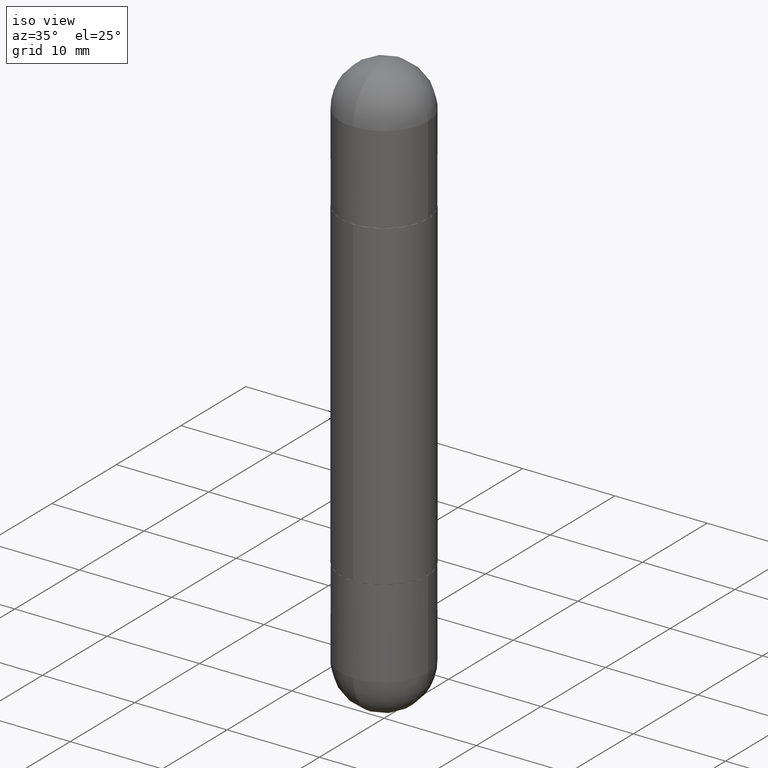
[diagram: clean part render]
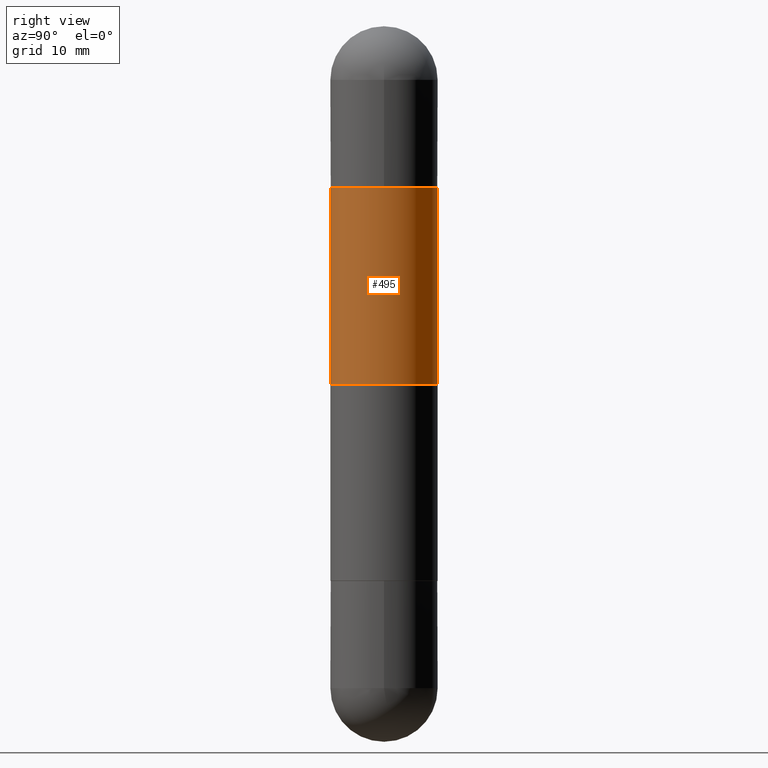
[diagram: tour spotlight — one face highlighted and labeled with its STEP entity id]
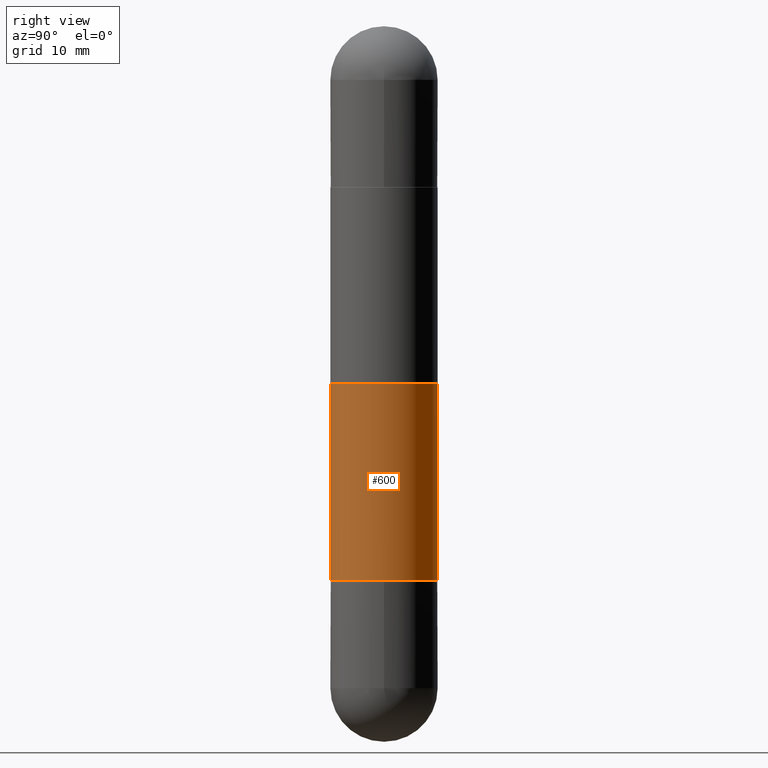
[diagram: tour spotlight — one face highlighted and labeled with its STEP entity id]
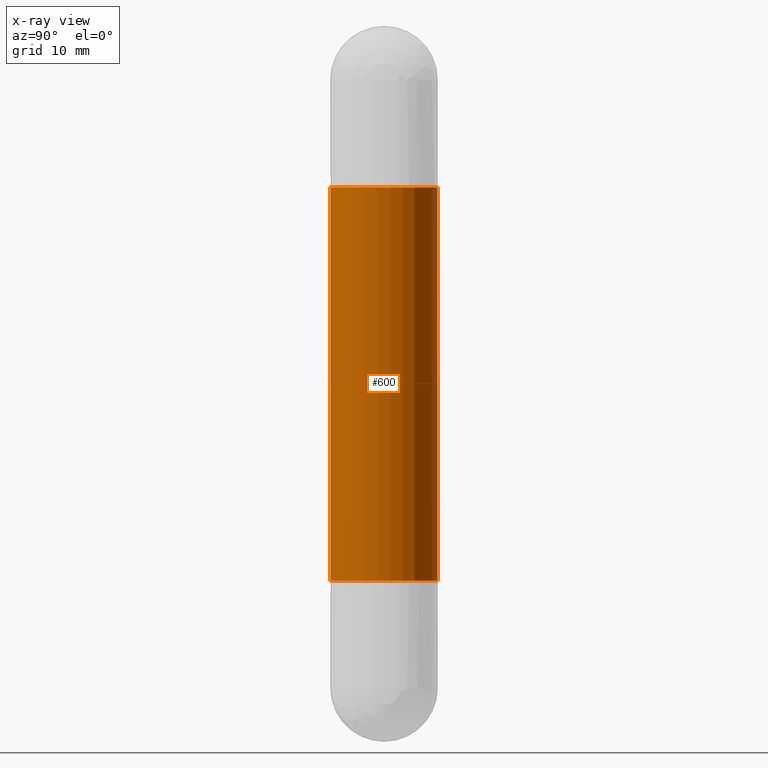
[diagram: x-ray of the same camera — body ghosted, this tour face saturated]
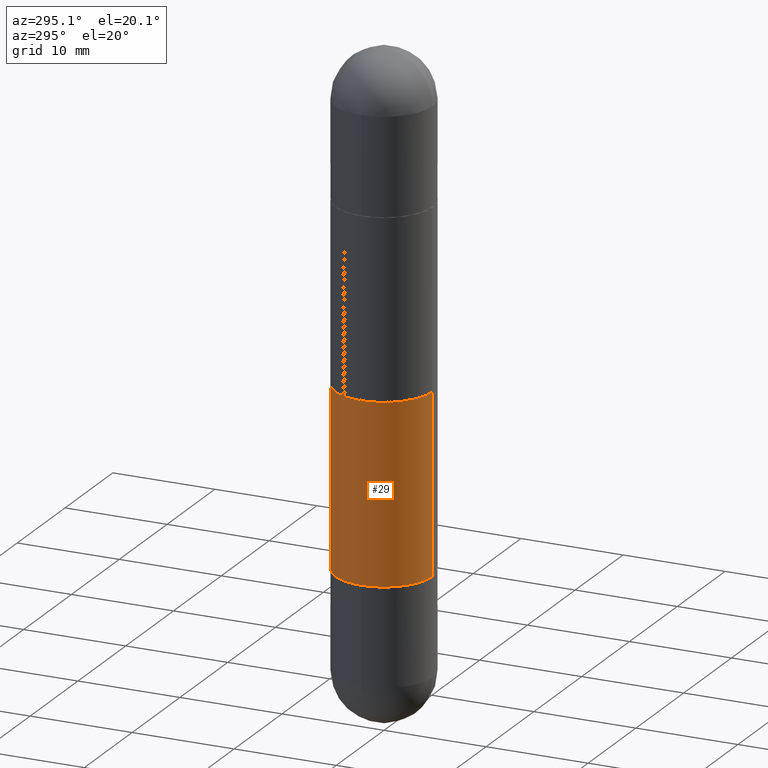
[diagram: tour spotlight — one face highlighted and labeled with its STEP entity id]
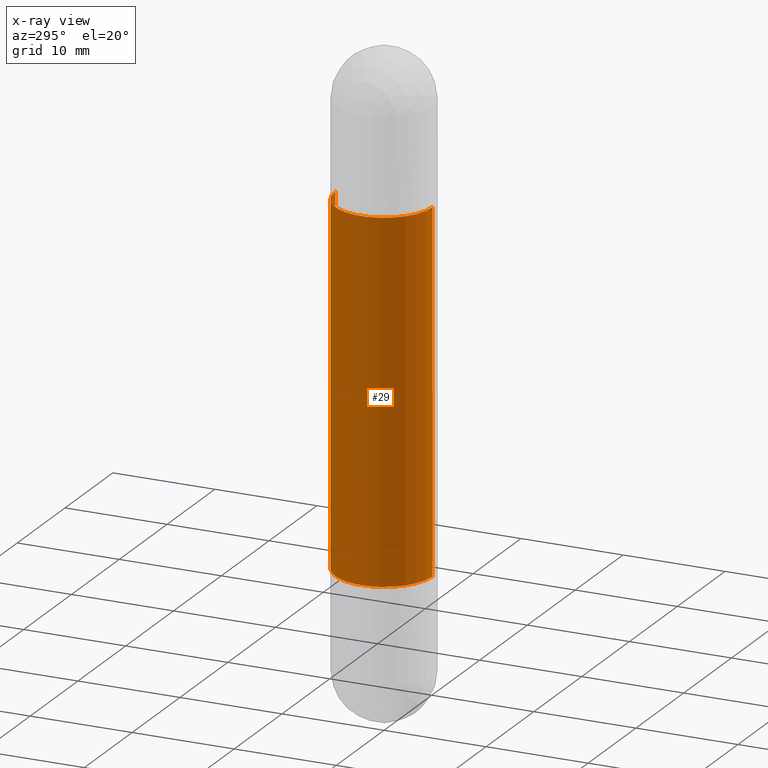
[diagram: x-ray of the same camera — body ghosted, this tour face saturated]
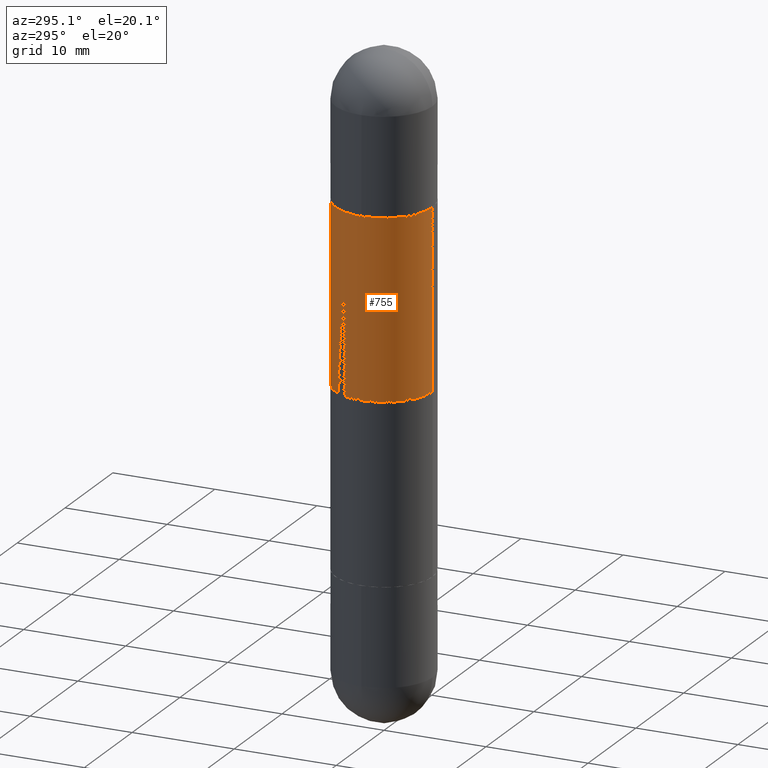
[diagram: tour spotlight — one face highlighted and labeled with its STEP entity id]
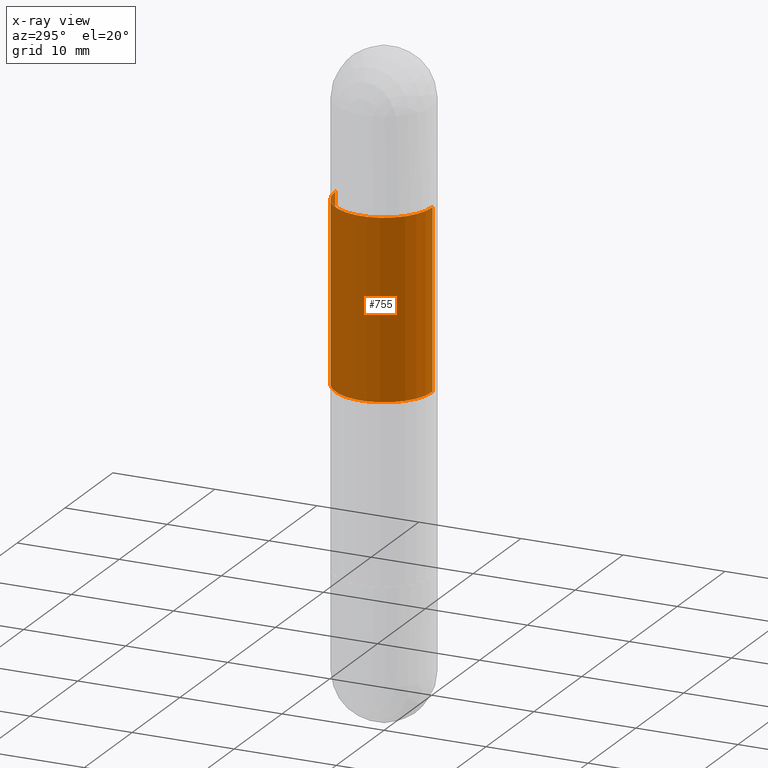
[diagram: x-ray of the same camera — body ghosted, this tour face saturated]
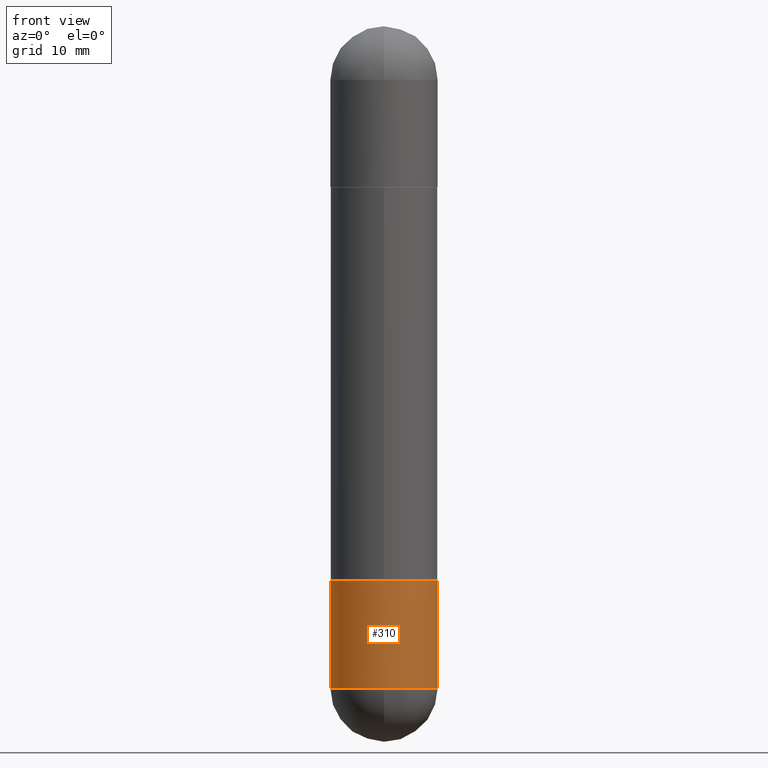
[diagram: tour spotlight — one face highlighted and labeled with its STEP entity id]
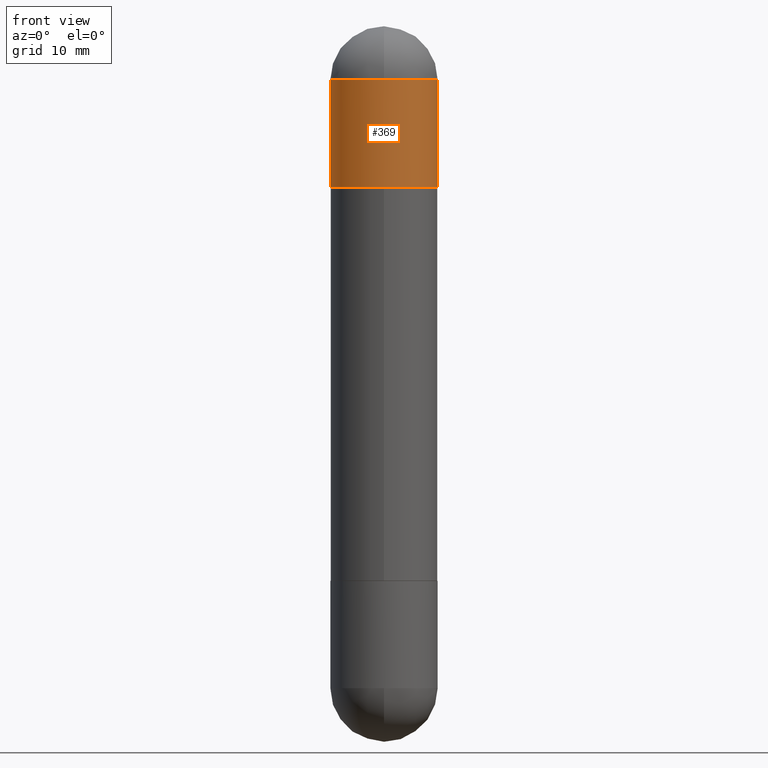
[diagram: tour spotlight — one face highlighted and labeled with its STEP entity id]
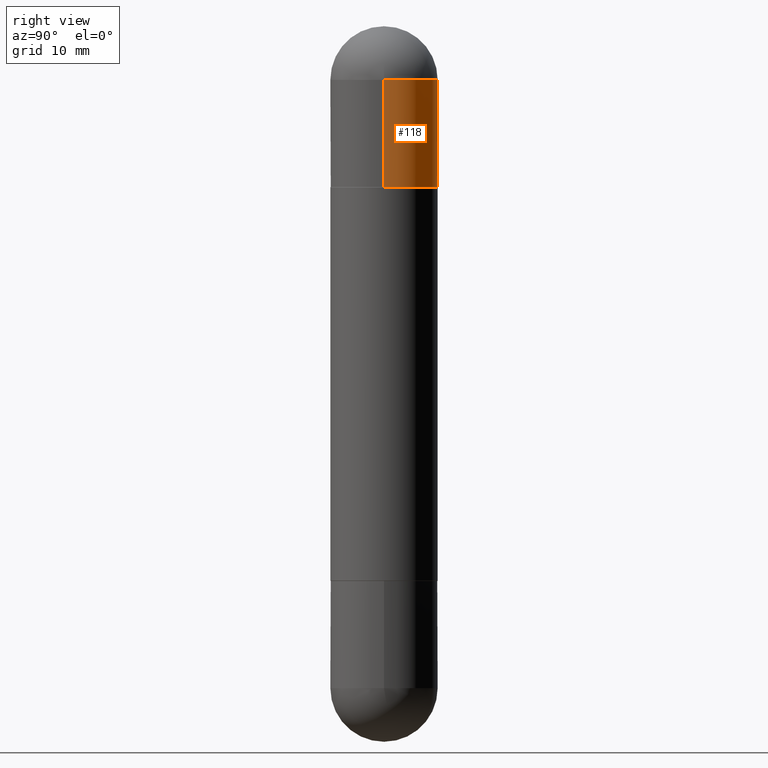
[diagram: tour spotlight — one face highlighted and labeled with its STEP entity id]
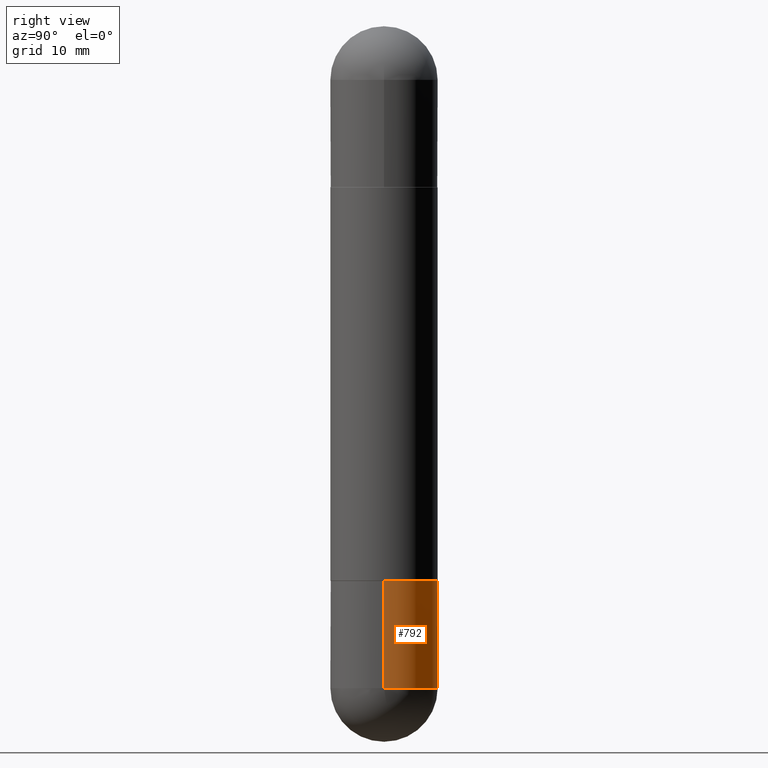
[diagram: tour spotlight — one face highlighted and labeled with its STEP entity id]
A machine part: a face-by-face anatomy tour. The part has 29 B-rep faces; the first image is the clean iso view, then the 8 largest visible faces are spotlighted one at a time (largest first), each with its STEP entity span.

Face 1 — right view, entity #495. In plain terms, the highlighted cylindrical surface (partial cylindrical patch) has radius 4.7625 mm, axis along (-0, 0, -1).
Definition (entity closure, byte-faithful):
#81 = ORIENTED_EDGE ( 'NONE', *, *, #719, .F. ) ;
#113 = CARTESIAN_POINT ( 'NONE',  ( 3.057398756860784006E-29, -4.363545784770995696E-15, -1.250000000000000222 ) ) ;
#135 = DIRECTION ( 'NONE',  ( -6.982962677686265922E-15, -1.000000000000000000, -3.642463991552347014E-15 ) ) ;
#182 = CARTESIAN_POINT ( 'NONE',  ( 0.000000000000000000, 0.000000000000000000, -2.500000000000000444 ) ) ;
#185 = DIRECTION ( 'NONE',  ( -2.445919005488626364E-29, 3.490836627816795453E-15, -1.000000000000000000 ) ) ;
#210 = CARTESIAN_POINT ( 'NONE',  ( 1.286343374582162760E-15, 0.1875000000000001110, -2.500000000000000000 ) ) ;
#215 = VERTEX_POINT ( 'NONE', #644 ) ;
#250 = EDGE_CURVE ( 'NONE', #215, #428, #277, .T. ) ;
#277 = LINE ( 'NONE', #210, #727 ) ;
#279 = VECTOR ( 'NONE', #185, 39.37007874015748143 ) ;
#318 = AXIS2_PLACEMENT_3D ( 'NONE', #113, #361, #380 ) ;
#321 = CARTESIAN_POINT ( 'NONE',  ( -1.309305502066128860E-15, -0.1875000000000069389, -0.5630000000000014992 ) ) ;
#351 = FACE_OUTER_BOUND ( 'NONE', #561, .T. ) ;
#353 = CARTESIAN_POINT ( 'NONE',  ( 1.286343374582209894E-15, 0.1874999999999957534, -1.250000000000000222 ) ) ;
#361 = DIRECTION ( 'NONE',  ( -0.000000000000000000, -0.000000000000000000, -1.000000000000000000 ) ) ;
#370 = AXIS2_PLACEMENT_3D ( 'NONE', #182, #500, #756 ) ;
#380 = DIRECTION ( 'NONE',  ( -1.000000000000000000, 0.000000000000000000, 0.000000000000000000 ) ) ;
#404 = ORIENTED_EDGE ( 'NONE', *, *, #250, .F. ) ;
#426 = AXIS2_PLACEMENT_3D ( 'NONE', #750, #430, #135 ) ;
#428 = VERTEX_POINT ( 'NONE', #353 ) ;
#430 = DIRECTION ( 'NONE',  ( 2.445919005488626364E-29, -3.490836627816795453E-15, 1.000000000000000000 ) ) ;
#453 = CIRCLE ( 'NONE', #426, 0.1875000000000002220 ) ;
#460 = VERTEX_POINT ( 'NONE', #747 ) ;
#479 = ORIENTED_EDGE ( 'NONE', *, *, #519, .T. ) ;
#495 = ADVANCED_FACE ( 'NONE', ( #351 ), #563, .T. ) ;
#500 = DIRECTION ( 'NONE',  ( -2.445919005488626364E-29, 3.490836627816795453E-15, -1.000000000000000000 ) ) ;
#519 = EDGE_CURVE ( 'NONE', #704, #460, #816, .T. ) ;
#561 = EDGE_LOOP ( 'NONE', ( #404, #725, #479, #81 ) ) ;
#563 = CYLINDRICAL_SURFACE ( 'NONE', #370, 0.1875000000000001110 ) ;
#583 = DIRECTION ( 'NONE',  ( -2.445919005488626364E-29, 3.490836627816795453E-15, -1.000000000000000000 ) ) ;
#610 = CIRCLE ( 'NONE', #318, 0.1875000000000001110 ) ;
#619 = CARTESIAN_POINT ( 'NONE',  ( -1.309305502066175797E-15, -0.1875000000000001110, -2.500000000000001332 ) ) ;
#644 = CARTESIAN_POINT ( 'NONE',  ( 1.286343374582210880E-15, 0.1874999999999935052, -0.5630000000000001670 ) ) ;
#704 = VERTEX_POINT ( 'NONE', #321 ) ;
#719 = EDGE_CURVE ( 'NONE', #428, #460, #610, .T. ) ;
#725 = ORIENTED_EDGE ( 'NONE', *, *, #760, .F. ) ;
#727 = VECTOR ( 'NONE', #583, 39.37007874015748143 ) ;
#747 = CARTESIAN_POINT ( 'NONE',  ( -1.309305502066136946E-15, -0.1875000000000044964, -1.250000000000000222 ) ) ;
#750 = CARTESIAN_POINT ( 'NONE',  ( 4.737745113631468267E-29, -6.761750548081131125E-15, -0.5630000000000008331 ) ) ;
#756 = DIRECTION ( 'NONE',  ( -6.982962677686266711E-15, -1.000000000000000000, -2.913971193241879189E-15 ) ) ;
#760 = EDGE_CURVE ( 'NONE', #704, #215, #453, .T. ) ;
#816 = LINE ( 'NONE', #619, #279 ) ;

Face 2 — right view, entity #600. An x-ray twin of the same camera follows (body ghosted, this face saturated) — the face is partly hidden behind the body. In plain terms, the highlighted cylindrical surface (partial cylindrical patch) has radius 4.7625 mm, axis along (-0, 0, -1).
Definition (entity closure, byte-faithful):
#10 = CARTESIAN_POINT ( 'NONE',  ( 0.000000000000000000, 0.000000000000000000, -2.500000000000000444 ) ) ;
#24 = DIRECTION ( 'NONE',  ( -2.445919005488626364E-29, 3.490836627816795453E-15, 1.000000000000000000 ) ) ;
#49 = CARTESIAN_POINT ( 'NONE',  ( -1.309305502066128860E-15, -0.1875000000000069389, -0.5630000000000014992 ) ) ;
#52 = VERTEX_POINT ( 'NONE', #633 ) ;
#57 = VECTOR ( 'NONE', #769, 39.37007874015748143 ) ;
#58 = DIRECTION ( 'NONE',  ( -2.445919005488626364E-29, 3.490836627816795453E-15, -1.000000000000000000 ) ) ;
#89 = CIRCLE ( 'NONE', #754, 0.1875000000000002220 ) ;
#110 = AXIS2_PLACEMENT_3D ( 'NONE', #10, #58, #765 ) ;
#163 = ORIENTED_EDGE ( 'NONE', *, *, #582, .F. ) ;
#166 = DIRECTION ( 'NONE',  ( 2.445919005488626364E-29, -3.490836627816795453E-15, 1.000000000000000000 ) ) ;
#167 = ORIENTED_EDGE ( 'NONE', *, *, #366, .F. ) ;
#199 = CARTESIAN_POINT ( 'NONE',  ( 1.286343374582193722E-15, 0.1874999999999934497, -1.937000000000000499 ) ) ;
#218 = DIRECTION ( 'NONE',  ( -6.982962677686265922E-15, -1.000000000000000000, 2.913971193241877216E-15 ) ) ;
#263 = CARTESIAN_POINT ( 'NONE',  ( 1.286343374582210880E-15, 0.1874999999999935052, -0.5630000000000001670 ) ) ;
#357 = AXIS2_PLACEMENT_3D ( 'NONE', #656, #24, #218 ) ;
#366 = EDGE_CURVE ( 'NONE', #745, #784, #89, .T. ) ;
#378 = CYLINDRICAL_SURFACE ( 'NONE', #110, 0.1875000000000001110 ) ;
#506 = FACE_OUTER_BOUND ( 'NONE', #661, .T. ) ;
#507 = VECTOR ( 'NONE', #580, 39.37007874015748143 ) ;
#514 = LINE ( 'NONE', #707, #507 ) ;
#532 = ORIENTED_EDGE ( 'NONE', *, *, #815, .T. ) ;
#550 = CIRCLE ( 'NONE', #357, 0.1875000000000002220 ) ;
#580 = DIRECTION ( 'NONE',  ( -2.445919005488626364E-29, 3.490836627816795453E-15, -1.000000000000000000 ) ) ;
#582 = EDGE_CURVE ( 'NONE', #784, #667, #687, .T. ) ;
#600 = ADVANCED_FACE ( 'NONE', ( #506 ), #378, .T. ) ;
#629 = CARTESIAN_POINT ( 'NONE',  ( 1.286343374582162760E-15, 0.1875000000000001110, -2.500000000000000000 ) ) ;
#633 = CARTESIAN_POINT ( 'NONE',  ( -1.309305502066129254E-15, -0.1875000000000069944, -1.936999999999999389 ) ) ;
#656 = CARTESIAN_POINT ( 'NONE',  ( 4.737745113631468267E-29, -6.761750548081131125E-15, -1.936999999999999833 ) ) ;
#661 = EDGE_LOOP ( 'NONE', ( #163, #167, #785, #532 ) ) ;
#667 = VERTEX_POINT ( 'NONE', #199 ) ;
#674 = DIRECTION ( 'NONE',  ( -6.982962677686265922E-15, -1.000000000000000000, -3.642463991552347014E-15 ) ) ;
#687 = LINE ( 'NONE', #629, #57 ) ;
#707 = CARTESIAN_POINT ( 'NONE',  ( -1.309305502066175797E-15, -0.1875000000000001110, -2.500000000000001332 ) ) ;
#745 = VERTEX_POINT ( 'NONE', #49 ) ;
#754 = AXIS2_PLACEMENT_3D ( 'NONE', #801, #166, #674 ) ;
#765 = DIRECTION ( 'NONE',  ( -6.982962677686266711E-15, -1.000000000000000000, -2.913971193241879189E-15 ) ) ;
#769 = DIRECTION ( 'NONE',  ( -2.445919005488626364E-29, 3.490836627816795453E-15, -1.000000000000000000 ) ) ;
#783 = EDGE_CURVE ( 'NONE', #745, #52, #514, .T. ) ;
#784 = VERTEX_POINT ( 'NONE', #263 ) ;
#785 = ORIENTED_EDGE ( 'NONE', *, *, #783, .T. ) ;
#801 = CARTESIAN_POINT ( 'NONE',  ( 4.737745113631468267E-29, -6.761750548081131125E-15, -0.5630000000000008331 ) ) ;
#815 = EDGE_CURVE ( 'NONE', #52, #667, #550, .T. ) ;

Face 3 — auxiliary view, entity #29. An x-ray twin of the same camera follows (body ghosted, this face saturated) — the face is partly hidden behind the body. In plain terms, the highlighted cylindrical surface (partial cylindrical patch) has radius 4.7625 mm, axis along (-0, 0, -1).
Definition (entity closure, byte-faithful):
#8 = CARTESIAN_POINT ( 'NONE',  ( 4.737745113631468267E-29, -6.761750548081131125E-15, -0.5630000000000008331 ) ) ;
#29 = ADVANCED_FACE ( 'NONE', ( #123 ), #621, .T. ) ;
#49 = CARTESIAN_POINT ( 'NONE',  ( -1.309305502066128860E-15, -0.1875000000000069389, -0.5630000000000014992 ) ) ;
#52 = VERTEX_POINT ( 'NONE', #633 ) ;
#57 = VECTOR ( 'NONE', #769, 39.37007874015748143 ) ;
#62 = DIRECTION ( 'NONE',  ( -6.982962677686266711E-15, -1.000000000000000000, -2.913971193241879189E-15 ) ) ;
#108 = ORIENTED_EDGE ( 'NONE', *, *, #143, .F. ) ;
#123 = FACE_OUTER_BOUND ( 'NONE', #483, .T. ) ;
#126 = DIRECTION ( 'NONE',  ( -2.445919005488626364E-29, 3.490836627816795453E-15, -1.000000000000000000 ) ) ;
#130 = CIRCLE ( 'NONE', #554, 0.1875000000000002220 ) ;
#143 = EDGE_CURVE ( 'NONE', #784, #745, #130, .T. ) ;
#194 = CARTESIAN_POINT ( 'NONE',  ( 0.000000000000000000, 0.000000000000000000, -2.500000000000000444 ) ) ;
#199 = CARTESIAN_POINT ( 'NONE',  ( 1.286343374582193722E-15, 0.1874999999999934497, -1.937000000000000499 ) ) ;
#263 = CARTESIAN_POINT ( 'NONE',  ( 1.286343374582210880E-15, 0.1874999999999935052, -0.5630000000000001670 ) ) ;
#301 = DIRECTION ( 'NONE',  ( -6.982962677686265922E-15, -1.000000000000000000, 2.913971193241877216E-15 ) ) ;
#350 = AXIS2_PLACEMENT_3D ( 'NONE', #194, #126, #62 ) ;
#397 = CIRCLE ( 'NONE', #597, 0.1875000000000002220 ) ;
#483 = EDGE_LOOP ( 'NONE', ( #108, #752, #664, #617 ) ) ;
#507 = VECTOR ( 'NONE', #580, 39.37007874015748143 ) ;
#514 = LINE ( 'NONE', #707, #507 ) ;
#554 = AXIS2_PLACEMENT_3D ( 'NONE', #8, #706, #579 ) ;
#579 = DIRECTION ( 'NONE',  ( -6.982962677686265922E-15, -1.000000000000000000, -3.642463991552347014E-15 ) ) ;
#580 = DIRECTION ( 'NONE',  ( -2.445919005488626364E-29, 3.490836627816795453E-15, -1.000000000000000000 ) ) ;
#582 = EDGE_CURVE ( 'NONE', #784, #667, #687, .T. ) ;
#597 = AXIS2_PLACEMENT_3D ( 'NONE', #766, #641, #301 ) ;
#617 = ORIENTED_EDGE ( 'NONE', *, *, #783, .F. ) ;
#621 = CYLINDRICAL_SURFACE ( 'NONE', #350, 0.1875000000000001110 ) ;
#629 = CARTESIAN_POINT ( 'NONE',  ( 1.286343374582162760E-15, 0.1875000000000001110, -2.500000000000000000 ) ) ;
#633 = CARTESIAN_POINT ( 'NONE',  ( -1.309305502066129254E-15, -0.1875000000000069944, -1.936999999999999389 ) ) ;
#641 = DIRECTION ( 'NONE',  ( -2.445919005488626364E-29, 3.490836627816795453E-15, 1.000000000000000000 ) ) ;
#657 = EDGE_CURVE ( 'NONE', #667, #52, #397, .T. ) ;
#664 = ORIENTED_EDGE ( 'NONE', *, *, #657, .T. ) ;
#667 = VERTEX_POINT ( 'NONE', #199 ) ;
#687 = LINE ( 'NONE', #629, #57 ) ;
#706 = DIRECTION ( 'NONE',  ( 2.445919005488626364E-29, -3.490836627816795453E-15, 1.000000000000000000 ) ) ;
#707 = CARTESIAN_POINT ( 'NONE',  ( -1.309305502066175797E-15, -0.1875000000000001110, -2.500000000000001332 ) ) ;
#745 = VERTEX_POINT ( 'NONE', #49 ) ;
#752 = ORIENTED_EDGE ( 'NONE', *, *, #582, .T. ) ;
#766 = CARTESIAN_POINT ( 'NONE',  ( 4.737745113631468267E-29, -6.761750548081131125E-15, -1.936999999999999833 ) ) ;
#769 = DIRECTION ( 'NONE',  ( -2.445919005488626364E-29, 3.490836627816795453E-15, -1.000000000000000000 ) ) ;
#783 = EDGE_CURVE ( 'NONE', #745, #52, #514, .T. ) ;
#784 = VERTEX_POINT ( 'NONE', #263 ) ;

Face 4 — auxiliary view, entity #755. An x-ray twin of the same camera follows (body ghosted, this face saturated) — the face is partly hidden behind the body. In plain terms, the highlighted cylindrical surface (partial cylindrical patch) has radius 4.7625 mm, axis along (-0, 0, -1).
Definition (entity closure, byte-faithful):
#14 = DIRECTION ( 'NONE',  ( -1.000000000000000000, 0.000000000000000000, 0.000000000000000000 ) ) ;
#63 = FACE_OUTER_BOUND ( 'NONE', #238, .T. ) ;
#70 = CARTESIAN_POINT ( 'NONE',  ( 0.000000000000000000, 0.000000000000000000, -2.500000000000000444 ) ) ;
#184 = ORIENTED_EDGE ( 'NONE', *, *, #251, .F. ) ;
#185 = DIRECTION ( 'NONE',  ( -2.445919005488626364E-29, 3.490836627816795453E-15, -1.000000000000000000 ) ) ;
#210 = CARTESIAN_POINT ( 'NONE',  ( 1.286343374582162760E-15, 0.1875000000000001110, -2.500000000000000000 ) ) ;
#215 = VERTEX_POINT ( 'NONE', #644 ) ;
#238 = EDGE_LOOP ( 'NONE', ( #412, #242, #184, #300 ) ) ;
#242 = ORIENTED_EDGE ( 'NONE', *, *, #250, .T. ) ;
#250 = EDGE_CURVE ( 'NONE', #215, #428, #277, .T. ) ;
#251 = EDGE_CURVE ( 'NONE', #460, #428, #337, .T. ) ;
#252 = DIRECTION ( 'NONE',  ( 2.445919005488626364E-29, -3.490836627816795453E-15, 1.000000000000000000 ) ) ;
#277 = LINE ( 'NONE', #210, #727 ) ;
#279 = VECTOR ( 'NONE', #185, 39.37007874015748143 ) ;
#300 = ORIENTED_EDGE ( 'NONE', *, *, #519, .F. ) ;
#321 = CARTESIAN_POINT ( 'NONE',  ( -1.309305502066128860E-15, -0.1875000000000069389, -0.5630000000000014992 ) ) ;
#337 = CIRCLE ( 'NONE', #767, 0.1875000000000001110 ) ;
#353 = CARTESIAN_POINT ( 'NONE',  ( 1.286343374582209894E-15, 0.1874999999999957534, -1.250000000000000222 ) ) ;
#356 = CIRCLE ( 'NONE', #480, 0.1875000000000002220 ) ;
#412 = ORIENTED_EDGE ( 'NONE', *, *, #546, .F. ) ;
#428 = VERTEX_POINT ( 'NONE', #353 ) ;
#436 = CARTESIAN_POINT ( 'NONE',  ( 4.737745113631468267E-29, -6.761750548081131125E-15, -0.5630000000000008331 ) ) ;
#460 = VERTEX_POINT ( 'NONE', #747 ) ;
#462 = CARTESIAN_POINT ( 'NONE',  ( 3.057398756860784006E-29, -4.363545784770995696E-15, -1.250000000000000222 ) ) ;
#480 = AXIS2_PLACEMENT_3D ( 'NONE', #436, #252, #696 ) ;
#519 = EDGE_CURVE ( 'NONE', #704, #460, #816, .T. ) ;
#520 = AXIS2_PLACEMENT_3D ( 'NONE', #70, #810, #634 ) ;
#546 = EDGE_CURVE ( 'NONE', #215, #704, #356, .T. ) ;
#583 = DIRECTION ( 'NONE',  ( -2.445919005488626364E-29, 3.490836627816795453E-15, -1.000000000000000000 ) ) ;
#619 = CARTESIAN_POINT ( 'NONE',  ( -1.309305502066175797E-15, -0.1875000000000001110, -2.500000000000001332 ) ) ;
#634 = DIRECTION ( 'NONE',  ( -6.982962677686266711E-15, -1.000000000000000000, -2.913971193241879189E-15 ) ) ;
#644 = CARTESIAN_POINT ( 'NONE',  ( 1.286343374582210880E-15, 0.1874999999999935052, -0.5630000000000001670 ) ) ;
#696 = DIRECTION ( 'NONE',  ( -6.982962677686265922E-15, -1.000000000000000000, -3.642463991552347014E-15 ) ) ;
#702 = CYLINDRICAL_SURFACE ( 'NONE', #520, 0.1875000000000001110 ) ;
#704 = VERTEX_POINT ( 'NONE', #321 ) ;
#726 = DIRECTION ( 'NONE',  ( -0.000000000000000000, -0.000000000000000000, -1.000000000000000000 ) ) ;
#727 = VECTOR ( 'NONE', #583, 39.37007874015748143 ) ;
#747 = CARTESIAN_POINT ( 'NONE',  ( -1.309305502066136946E-15, -0.1875000000000044964, -1.250000000000000222 ) ) ;
#755 = ADVANCED_FACE ( 'NONE', ( #63 ), #702, .T. ) ;
#767 = AXIS2_PLACEMENT_3D ( 'NONE', #462, #726, #14 ) ;
#810 = DIRECTION ( 'NONE',  ( -2.445919005488626364E-29, 3.490836627816795453E-15, -1.000000000000000000 ) ) ;
#816 = LINE ( 'NONE', #619, #279 ) ;

Face 5 — front view, entity #310. In plain terms, the highlighted cylindrical surface (partial cylindrical patch) has radius 4.7625 mm, axis along (-0, 0, 1).
Definition (entity closure, byte-faithful):
#12 = CARTESIAN_POINT ( 'NONE',  ( 0.1875000000000000555, -8.729576217442571356E-15, -2.312500000000000000 ) ) ;
#16 = EDGE_CURVE ( 'NONE', #294, #729, #804, .T. ) ;
#96 = CIRCLE ( 'NONE', #763, 0.1875000000000000555 ) ;
#117 = DIRECTION ( 'NONE',  ( 1.000000000000000000, -6.982962677686270655E-15, 0.000000000000000000 ) ) ;
#153 = AXIS2_PLACEMENT_3D ( 'NONE', #685, #771, #267 ) ;
#172 = VERTEX_POINT ( 'NONE', #208 ) ;
#208 = CARTESIAN_POINT ( 'NONE',  ( -0.1875000000000000278, -6.088003085826206921E-15, -1.937999999999999945 ) ) ;
#225 = DIRECTION ( 'NONE',  ( -2.445468806185136597E-29, 3.491481338843145583E-15, 1.000000000000000000 ) ) ;
#231 = VECTOR ( 'NONE', #665, 39.37007874015748143 ) ;
#267 = DIRECTION ( 'NONE',  ( 1.000000000000000000, -6.982962677686266711E-15, 0.000000000000000000 ) ) ;
#272 = AXIS2_PLACEMENT_3D ( 'NONE', #492, #748, #117 ) ;
#275 = ORIENTED_EDGE ( 'NONE', *, *, #487, .F. ) ;
#278 = VERTEX_POINT ( 'NONE', #396 ) ;
#294 = VERTEX_POINT ( 'NONE', #335 ) ;
#310 = ADVANCED_FACE ( 'NONE', ( #471 ), #596, .T. ) ;
#311 = DIRECTION ( 'NONE',  ( 1.000000000000000000, -6.982962677686270655E-15, 0.000000000000000000 ) ) ;
#325 = AXIS2_PLACEMENT_3D ( 'NONE', #796, #225, #475 ) ;
#335 = CARTESIAN_POINT ( 'NONE',  ( -1.332267629550134009E-15, -0.1875000000000084932, -2.312499999999999556 ) ) ;
#346 = VECTOR ( 'NONE', #576, 39.37007874015748143 ) ;
#348 = LINE ( 'NONE', #411, #231 ) ;
#349 = EDGE_LOOP ( 'NONE', ( #275, #718, #413, #675, #354 ) ) ;
#354 = ORIENTED_EDGE ( 'NONE', *, *, #705, .F. ) ;
#377 = CARTESIAN_POINT ( 'NONE',  ( 0.1875000000000000555, -1.309305502066175205E-15, 9.142831454617382414E-30 ) ) ;
#396 = CARTESIAN_POINT ( 'NONE',  ( -0.1875000000000000555, -6.088003085826207710E-15, -2.312500000000000000 ) ) ;
#411 = CARTESIAN_POINT ( 'NONE',  ( -0.1875000000000000555, 1.332267629550188243E-15, -9.223003294227950793E-30 ) ) ;
#413 = ORIENTED_EDGE ( 'NONE', *, *, #16, .T. ) ;
#441 = CARTESIAN_POINT ( 'NONE',  ( 0.1875000000000000278, -8.075796336744191053E-15, -1.937999999999999945 ) ) ;
#448 = CARTESIAN_POINT ( 'NONE',  ( 5.655146614303128380E-29, -8.074050596074775072E-15, -2.312500000000000000 ) ) ;
#471 = FACE_OUTER_BOUND ( 'NONE', #349, .T. ) ;
#475 = DIRECTION ( 'NONE',  ( 1.000000000000000000, -6.982962677686265922E-15, 4.876176775795935793E-29 ) ) ;
#487 = EDGE_CURVE ( 'NONE', #278, #172, #348, .T. ) ;
#492 = CARTESIAN_POINT ( 'NONE',  ( 5.655146614303128380E-29, -8.074050596074775072E-15, -2.312500000000000000 ) ) ;
#505 = CIRCLE ( 'NONE', #153, 0.1875000000000000278 ) ;
#524 = VERTEX_POINT ( 'NONE', #441 ) ;
#573 = DIRECTION ( 'NONE',  ( -2.445468806185136597E-29, 3.491481338843145583E-15, 1.000000000000000000 ) ) ;
#576 = DIRECTION ( 'NONE',  ( -2.445468806185136877E-29, 3.491481338843145188E-15, 1.000000000000000000 ) ) ;
#596 = CYLINDRICAL_SURFACE ( 'NONE', #325, 0.1875000000000000555 ) ;
#603 = EDGE_CURVE ( 'NONE', #278, #294, #96, .T. ) ;
#615 = LINE ( 'NONE', #377, #346 ) ;
#665 = DIRECTION ( 'NONE',  ( -2.445468806185136877E-29, 3.491481338843145188E-15, 1.000000000000000000 ) ) ;
#675 = ORIENTED_EDGE ( 'NONE', *, *, #733, .T. ) ;
#685 = CARTESIAN_POINT ( 'NONE',  ( 4.739318546386794397E-29, -6.766490834678016045E-15, -1.937999999999999945 ) ) ;
#705 = EDGE_CURVE ( 'NONE', #172, #524, #505, .T. ) ;
#718 = ORIENTED_EDGE ( 'NONE', *, *, #603, .T. ) ;
#729 = VERTEX_POINT ( 'NONE', #12 ) ;
#733 = EDGE_CURVE ( 'NONE', #729, #524, #615, .T. ) ;
#748 = DIRECTION ( 'NONE',  ( -2.445468806185136597E-29, 3.491481338843145583E-15, 1.000000000000000000 ) ) ;
#763 = AXIS2_PLACEMENT_3D ( 'NONE', #448, #573, #311 ) ;
#771 = DIRECTION ( 'NONE',  ( -2.445468806185136597E-29, 3.491481338843145583E-15, 1.000000000000000000 ) ) ;
#796 = CARTESIAN_POINT ( 'NONE',  ( 0.000000000000000000, 0.000000000000000000, 0.000000000000000000 ) ) ;
#804 = CIRCLE ( 'NONE', #272, 0.1875000000000000555 ) ;

Face 6 — front view, entity #369. In plain terms, the highlighted cylindrical surface (partial cylindrical patch) has radius 4.7625 mm, axis along (-0, 0, -1).
Definition (entity closure, byte-faithful):
#9 = DIRECTION ( 'NONE',  ( 2.445468806185136597E-29, -3.491481338843145583E-15, 1.000000000000000000 ) ) ;
#43 = ORIENTED_EDGE ( 'NONE', *, *, #169, .T. ) ;
#46 = FACE_OUTER_BOUND ( 'NONE', #790, .T. ) ;
#106 = CARTESIAN_POINT ( 'NONE',  ( 0.000000000000000000, 0.000000000000000000, -2.500000000000000444 ) ) ;
#109 = LINE ( 'NONE', #803, #541 ) ;
#127 = CIRCLE ( 'NONE', #220, 0.1875000000000000555 ) ;
#158 = CIRCLE ( 'NONE', #555, 0.1875000000000000278 ) ;
#162 = DIRECTION ( 'NONE',  ( 1.000000000000000000, -6.982962677686266711E-15, 0.000000000000000000 ) ) ;
#169 = EDGE_CURVE ( 'NONE', #528, #233, #158, .T. ) ;
#174 = CARTESIAN_POINT ( 'NONE',  ( 0.1875000000000000555, -8.729576217442571356E-15, -0.1875000000000006661 ) ) ;
#187 = DIRECTION ( 'NONE',  ( 2.445468806185136597E-29, -3.491481338843145583E-15, 1.000000000000000000 ) ) ;
#211 = VERTEX_POINT ( 'NONE', #587 ) ;
#220 = AXIS2_PLACEMENT_3D ( 'NONE', #545, #556, #811 ) ;
#233 = VERTEX_POINT ( 'NONE', #648 ) ;
#234 = ORIENTED_EDGE ( 'NONE', *, *, #768, .F. ) ;
#237 = DIRECTION ( 'NONE',  ( 1.000000000000000000, -6.982962677686265922E-15, 0.000000000000000000 ) ) ;
#261 = CARTESIAN_POINT ( 'NONE',  ( -0.1875000000000000278, -6.133927340794232602E-15, -0.5620000000000007212 ) ) ;
#288 = ORIENTED_EDGE ( 'NONE', *, *, #344, .F. ) ;
#298 = DIRECTION ( 'NONE',  ( -2.445468806185136597E-29, 3.491481338843145583E-15, -1.000000000000000000 ) ) ;
#306 = AXIS2_PLACEMENT_3D ( 'NONE', #631, #9, #571 ) ;
#344 = EDGE_CURVE ( 'NONE', #421, #233, #109, .T. ) ;
#362 = LINE ( 'NONE', #542, #749 ) ;
#369 = ADVANCED_FACE ( 'NONE', ( #46 ), #416, .T. ) ;
#401 = CARTESIAN_POINT ( 'NONE',  ( -1.286343374582108525E-15, -0.1875000000000084932, -0.1875000000000013045 ) ) ;
#416 = CYLINDRICAL_SURFACE ( 'NONE', #445, 0.1875000000000000555 ) ;
#421 = VERTEX_POINT ( 'NONE', #174 ) ;
#422 = EDGE_CURVE ( 'NONE', #211, #807, #127, .T. ) ;
#445 = AXIS2_PLACEMENT_3D ( 'NONE', #106, #298, #237 ) ;
#470 = EDGE_CURVE ( 'NONE', #211, #528, #362, .T. ) ;
#482 = DIRECTION ( 'NONE',  ( -2.445468806185136877E-29, 3.491481338843145188E-15, -1.000000000000000000 ) ) ;
#528 = VERTEX_POINT ( 'NONE', #261 ) ;
#534 = CIRCLE ( 'NONE', #306, 0.1875000000000000555 ) ;
#541 = VECTOR ( 'NONE', #482, 39.37007874015748143 ) ;
#542 = CARTESIAN_POINT ( 'NONE',  ( -0.1875000000000000555, 1.286343374582162562E-15, -2.500000000000000444 ) ) ;
#545 = CARTESIAN_POINT ( 'NONE',  ( 5.655146614303128380E-29, -8.074050596074775072E-15, -0.1875000000000006661 ) ) ;
#555 = AXIS2_PLACEMENT_3D ( 'NONE', #565, #187, #162 ) ;
#556 = DIRECTION ( 'NONE',  ( 2.445468806185136597E-29, -3.491481338843145583E-15, 1.000000000000000000 ) ) ;
#565 = CARTESIAN_POINT ( 'NONE',  ( 4.739318546386794397E-29, -6.766490834678016045E-15, -0.5620000000000007212 ) ) ;
#571 = DIRECTION ( 'NONE',  ( 1.000000000000000000, -6.982962677686270655E-15, 0.000000000000000000 ) ) ;
#587 = CARTESIAN_POINT ( 'NONE',  ( -0.1875000000000000555, -6.133927340794233391E-15, -0.1875000000000006661 ) ) ;
#616 = DIRECTION ( 'NONE',  ( -2.445468806185136877E-29, 3.491481338843145188E-15, -1.000000000000000000 ) ) ;
#620 = ORIENTED_EDGE ( 'NONE', *, *, #422, .F. ) ;
#631 = CARTESIAN_POINT ( 'NONE',  ( 5.655146614303128380E-29, -8.074050596074775072E-15, -0.1875000000000006661 ) ) ;
#648 = CARTESIAN_POINT ( 'NONE',  ( 0.1875000000000000278, -8.075796336744191053E-15, -0.5620000000000007212 ) ) ;
#749 = VECTOR ( 'NONE', #616, 39.37007874015748143 ) ;
#768 = EDGE_CURVE ( 'NONE', #807, #421, #534, .T. ) ;
#790 = EDGE_LOOP ( 'NONE', ( #620, #802, #43, #288, #234 ) ) ;
#802 = ORIENTED_EDGE ( 'NONE', *, *, #470, .T. ) ;
#803 = CARTESIAN_POINT ( 'NONE',  ( 0.1875000000000000555, -1.309305502066175205E-15, -2.500000000000000444 ) ) ;
#807 = VERTEX_POINT ( 'NONE', #401 ) ;
#811 = DIRECTION ( 'NONE',  ( 1.000000000000000000, -6.982962677686270655E-15, 0.000000000000000000 ) ) ;

Face 7 — right view, entity #118. In plain terms, the highlighted cylindrical surface (partial cylindrical patch) has radius 4.7625 mm, axis along (-0, 0, -1).
Definition (entity closure, byte-faithful):
#34 = CIRCLE ( 'NONE', #499, 0.1875000000000000555 ) ;
#69 = CARTESIAN_POINT ( 'NONE',  ( 4.739318546386794397E-29, -6.766490834678016045E-15, -0.5620000000000007212 ) ) ;
#78 = EDGE_CURVE ( 'NONE', #618, #211, #34, .T. ) ;
#105 = EDGE_CURVE ( 'NONE', #233, #528, #818, .T. ) ;
#109 = LINE ( 'NONE', #803, #541 ) ;
#118 = ADVANCED_FACE ( 'NONE', ( #386 ), #253, .T. ) ;
#136 = CARTESIAN_POINT ( 'NONE',  ( 1.309305502066231017E-15, 0.1874999999999918954, -0.1875000000000000278 ) ) ;
#137 = DIRECTION ( 'NONE',  ( 1.000000000000000000, -6.982962677686265922E-15, 0.000000000000000000 ) ) ;
#174 = CARTESIAN_POINT ( 'NONE',  ( 0.1875000000000000555, -8.729576217442571356E-15, -0.1875000000000006661 ) ) ;
#211 = VERTEX_POINT ( 'NONE', #587 ) ;
#233 = VERTEX_POINT ( 'NONE', #648 ) ;
#253 = CYLINDRICAL_SURFACE ( 'NONE', #312, 0.1875000000000000555 ) ;
#254 = DIRECTION ( 'NONE',  ( 2.445468806185136597E-29, -3.491481338843145583E-15, 1.000000000000000000 ) ) ;
#261 = CARTESIAN_POINT ( 'NONE',  ( -0.1875000000000000278, -6.133927340794232602E-15, -0.5620000000000007212 ) ) ;
#262 = DIRECTION ( 'NONE',  ( 1.000000000000000000, -6.982962677686266711E-15, 0.000000000000000000 ) ) ;
#271 = EDGE_LOOP ( 'NONE', ( #805, #683, #536, #548, #724 ) ) ;
#312 = AXIS2_PLACEMENT_3D ( 'NONE', #438, #315, #137 ) ;
#315 = DIRECTION ( 'NONE',  ( -2.445468806185136597E-29, 3.491481338843145583E-15, -1.000000000000000000 ) ) ;
#344 = EDGE_CURVE ( 'NONE', #421, #233, #109, .T. ) ;
#362 = LINE ( 'NONE', #542, #749 ) ;
#386 = FACE_OUTER_BOUND ( 'NONE', #271, .T. ) ;
#389 = CARTESIAN_POINT ( 'NONE',  ( 5.655146614303128380E-29, -8.074050596074775072E-15, -0.1875000000000006661 ) ) ;
#414 = CIRCLE ( 'NONE', #523, 0.1875000000000000555 ) ;
#421 = VERTEX_POINT ( 'NONE', #174 ) ;
#438 = CARTESIAN_POINT ( 'NONE',  ( 0.000000000000000000, 0.000000000000000000, -2.500000000000000444 ) ) ;
#446 = DIRECTION ( 'NONE',  ( 1.000000000000000000, -6.982962677686270655E-15, 0.000000000000000000 ) ) ;
#457 = AXIS2_PLACEMENT_3D ( 'NONE', #69, #626, #262 ) ;
#470 = EDGE_CURVE ( 'NONE', #211, #528, #362, .T. ) ;
#482 = DIRECTION ( 'NONE',  ( -2.445468806185136877E-29, 3.491481338843145188E-15, -1.000000000000000000 ) ) ;
#499 = AXIS2_PLACEMENT_3D ( 'NONE', #575, #692, #446 ) ;
#509 = DIRECTION ( 'NONE',  ( 1.000000000000000000, -6.982962677686270655E-15, 0.000000000000000000 ) ) ;
#523 = AXIS2_PLACEMENT_3D ( 'NONE', #389, #254, #509 ) ;
#528 = VERTEX_POINT ( 'NONE', #261 ) ;
#536 = ORIENTED_EDGE ( 'NONE', *, *, #779, .F. ) ;
#541 = VECTOR ( 'NONE', #482, 39.37007874015748143 ) ;
#542 = CARTESIAN_POINT ( 'NONE',  ( -0.1875000000000000555, 1.286343374582162562E-15, -2.500000000000000444 ) ) ;
#548 = ORIENTED_EDGE ( 'NONE', *, *, #344, .T. ) ;
#575 = CARTESIAN_POINT ( 'NONE',  ( 5.655146614303128380E-29, -8.074050596074775072E-15, -0.1875000000000006661 ) ) ;
#587 = CARTESIAN_POINT ( 'NONE',  ( -0.1875000000000000555, -6.133927340794233391E-15, -0.1875000000000006661 ) ) ;
#616 = DIRECTION ( 'NONE',  ( -2.445468806185136877E-29, 3.491481338843145188E-15, -1.000000000000000000 ) ) ;
#618 = VERTEX_POINT ( 'NONE', #136 ) ;
#626 = DIRECTION ( 'NONE',  ( 2.445468806185136597E-29, -3.491481338843145583E-15, 1.000000000000000000 ) ) ;
#648 = CARTESIAN_POINT ( 'NONE',  ( 0.1875000000000000278, -8.075796336744191053E-15, -0.5620000000000007212 ) ) ;
#683 = ORIENTED_EDGE ( 'NONE', *, *, #78, .F. ) ;
#692 = DIRECTION ( 'NONE',  ( 2.445468806185136597E-29, -3.491481338843145583E-15, 1.000000000000000000 ) ) ;
#724 = ORIENTED_EDGE ( 'NONE', *, *, #105, .T. ) ;
#749 = VECTOR ( 'NONE', #616, 39.37007874015748143 ) ;
#779 = EDGE_CURVE ( 'NONE', #421, #618, #414, .T. ) ;
#803 = CARTESIAN_POINT ( 'NONE',  ( 0.1875000000000000555, -1.309305502066175205E-15, -2.500000000000000444 ) ) ;
#805 = ORIENTED_EDGE ( 'NONE', *, *, #470, .F. ) ;
#818 = CIRCLE ( 'NONE', #457, 0.1875000000000000278 ) ;

Face 8 — right view, entity #792. In plain terms, the highlighted cylindrical surface (partial cylindrical patch) has radius 4.7625 mm, axis along (-0, 0, 1).
Definition (entity closure, byte-faithful):
#12 = CARTESIAN_POINT ( 'NONE',  ( 0.1875000000000000555, -8.729576217442571356E-15, -2.312500000000000000 ) ) ;
#19 = EDGE_CURVE ( 'NONE', #729, #564, #23, .T. ) ;
#22 = AXIS2_PLACEMENT_3D ( 'NONE', #433, #352, #689 ) ;
#23 = CIRCLE ( 'NONE', #22, 0.1875000000000000555 ) ;
#64 = CARTESIAN_POINT ( 'NONE',  ( 1.309305502066231017E-15, 0.1874999999999918954, -2.312500000000000444 ) ) ;
#76 = DIRECTION ( 'NONE',  ( -2.445468806185136597E-29, 3.491481338843145583E-15, 1.000000000000000000 ) ) ;
#100 = CIRCLE ( 'NONE', #527, 0.1875000000000000555 ) ;
#119 = EDGE_CURVE ( 'NONE', #564, #278, #100, .T. ) ;
#125 = ORIENTED_EDGE ( 'NONE', *, *, #19, .T. ) ;
#145 = CYLINDRICAL_SURFACE ( 'NONE', #400, 0.1875000000000000555 ) ;
#172 = VERTEX_POINT ( 'NONE', #208 ) ;
#208 = CARTESIAN_POINT ( 'NONE',  ( -0.1875000000000000278, -6.088003085826206921E-15, -1.937999999999999945 ) ) ;
#231 = VECTOR ( 'NONE', #665, 39.37007874015748143 ) ;
#248 = DIRECTION ( 'NONE',  ( 1.000000000000000000, -6.982962677686270655E-15, 0.000000000000000000 ) ) ;
#278 = VERTEX_POINT ( 'NONE', #396 ) ;
#281 = ORIENTED_EDGE ( 'NONE', *, *, #119, .T. ) ;
#283 = AXIS2_PLACEMENT_3D ( 'NONE', #599, #358, #677 ) ;
#328 = DIRECTION ( 'NONE',  ( 1.000000000000000000, -6.982962677686265922E-15, 4.876176775795935793E-29 ) ) ;
#345 = EDGE_CURVE ( 'NONE', #524, #172, #388, .T. ) ;
#346 = VECTOR ( 'NONE', #576, 39.37007874015748143 ) ;
#348 = LINE ( 'NONE', #411, #231 ) ;
#352 = DIRECTION ( 'NONE',  ( -2.445468806185136597E-29, 3.491481338843145583E-15, 1.000000000000000000 ) ) ;
#355 = ORIENTED_EDGE ( 'NONE', *, *, #487, .T. ) ;
#358 = DIRECTION ( 'NONE',  ( -2.445468806185136597E-29, 3.491481338843145583E-15, 1.000000000000000000 ) ) ;
#377 = CARTESIAN_POINT ( 'NONE',  ( 0.1875000000000000555, -1.309305502066175205E-15, 9.142831454617382414E-30 ) ) ;
#388 = CIRCLE ( 'NONE', #283, 0.1875000000000000278 ) ;
#396 = CARTESIAN_POINT ( 'NONE',  ( -0.1875000000000000555, -6.088003085826207710E-15, -2.312500000000000000 ) ) ;
#400 = AXIS2_PLACEMENT_3D ( 'NONE', #645, #76, #328 ) ;
#411 = CARTESIAN_POINT ( 'NONE',  ( -0.1875000000000000555, 1.332267629550188243E-15, -9.223003294227950793E-30 ) ) ;
#433 = CARTESIAN_POINT ( 'NONE',  ( 5.655146614303128380E-29, -8.074050596074775072E-15, -2.312500000000000000 ) ) ;
#441 = CARTESIAN_POINT ( 'NONE',  ( 0.1875000000000000278, -8.075796336744191053E-15, -1.937999999999999945 ) ) ;
#454 = FACE_OUTER_BOUND ( 'NONE', #757, .T. ) ;
#487 = EDGE_CURVE ( 'NONE', #278, #172, #348, .T. ) ;
#502 = CARTESIAN_POINT ( 'NONE',  ( 5.655146614303128380E-29, -8.074050596074775072E-15, -2.312500000000000000 ) ) ;
#524 = VERTEX_POINT ( 'NONE', #441 ) ;
#527 = AXIS2_PLACEMENT_3D ( 'NONE', #502, #569, #248 ) ;
#564 = VERTEX_POINT ( 'NONE', #64 ) ;
#569 = DIRECTION ( 'NONE',  ( -2.445468806185136597E-29, 3.491481338843145583E-15, 1.000000000000000000 ) ) ;
#576 = DIRECTION ( 'NONE',  ( -2.445468806185136877E-29, 3.491481338843145188E-15, 1.000000000000000000 ) ) ;
#599 = CARTESIAN_POINT ( 'NONE',  ( 4.739318546386794397E-29, -6.766490834678016045E-15, -1.937999999999999945 ) ) ;
#602 = ORIENTED_EDGE ( 'NONE', *, *, #345, .F. ) ;
#615 = LINE ( 'NONE', #377, #346 ) ;
#645 = CARTESIAN_POINT ( 'NONE',  ( 0.000000000000000000, 0.000000000000000000, 0.000000000000000000 ) ) ;
#665 = DIRECTION ( 'NONE',  ( -2.445468806185136877E-29, 3.491481338843145188E-15, 1.000000000000000000 ) ) ;
#677 = DIRECTION ( 'NONE',  ( 1.000000000000000000, -6.982962677686266711E-15, 0.000000000000000000 ) ) ;
#689 = DIRECTION ( 'NONE',  ( 1.000000000000000000, -6.982962677686270655E-15, 0.000000000000000000 ) ) ;
#728 = ORIENTED_EDGE ( 'NONE', *, *, #733, .F. ) ;
#729 = VERTEX_POINT ( 'NONE', #12 ) ;
#733 = EDGE_CURVE ( 'NONE', #729, #524, #615, .T. ) ;
#757 = EDGE_LOOP ( 'NONE', ( #281, #355, #602, #728, #125 ) ) ;
#792 = ADVANCED_FACE ( 'NONE', ( #454 ), #145, .T. ) ;